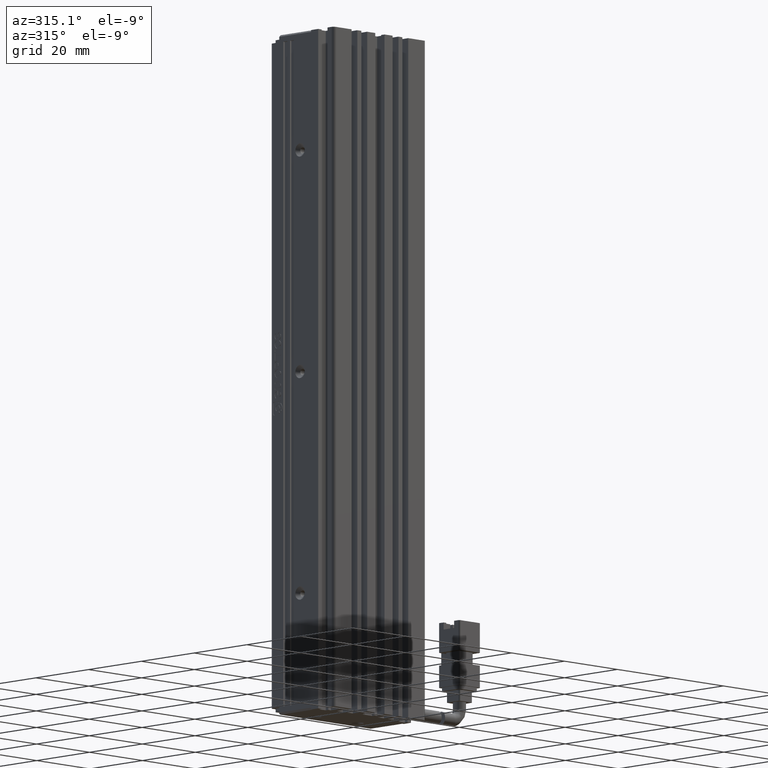
[diagram: clean part render]
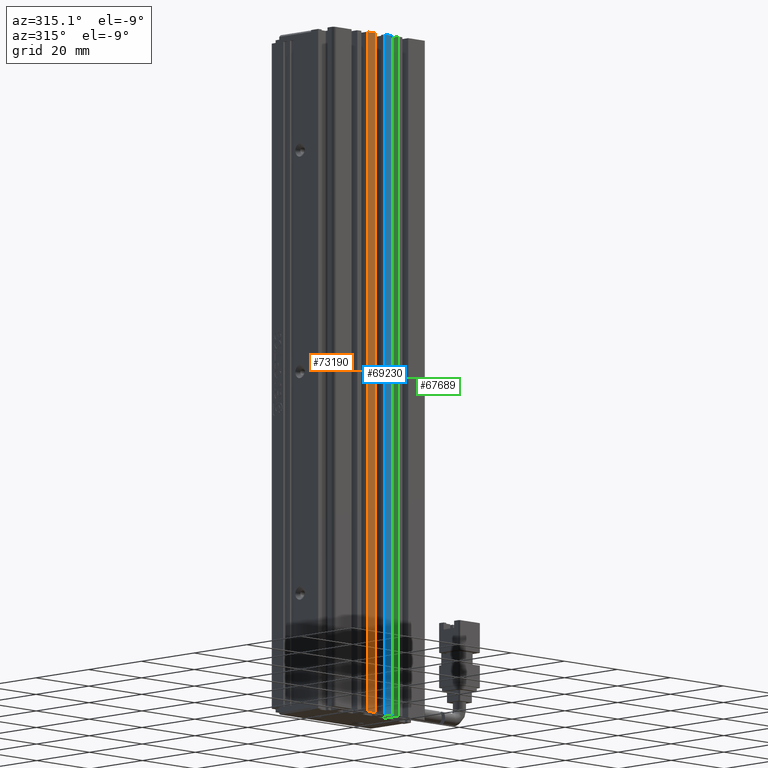
[diagram: same view with three faces highlighted in distinct colors, each labeled with its STEP entity id]
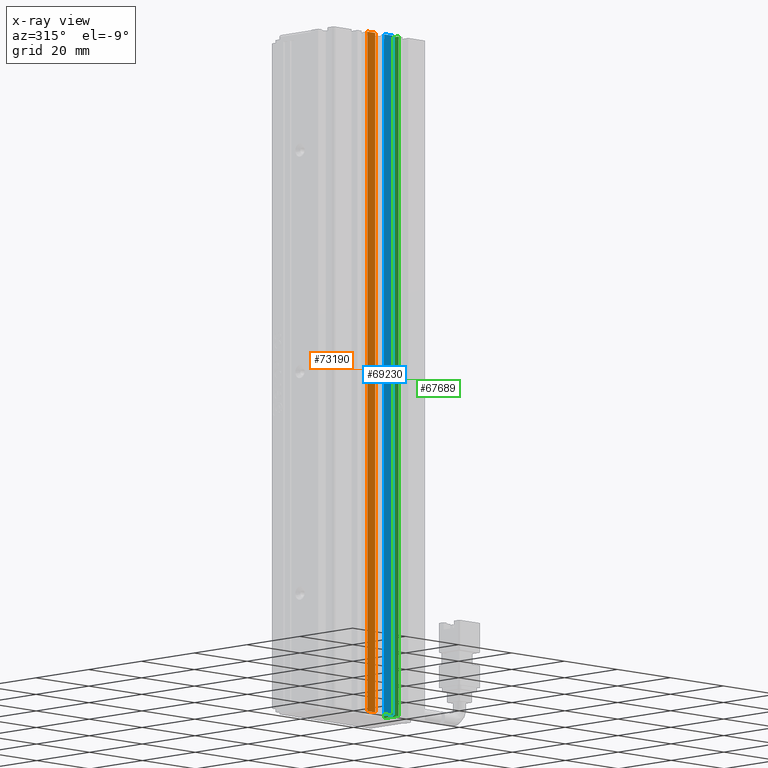
[diagram: x-ray of the same camera — body ghosted, the three highlighted faces saturated]
A machine part, auxiliary view with three faces highlighted in distinct colors.
The next image is the same camera in x-ray (body ghosted, the three faces saturated) — at least one of them is partly hidden behind the body in this view.
Their STEP definitions:

[orange] entity #73190 — the highlighted planar face has unit normal (0, -1, 0).
#4087 = EDGE_CURVE ( 'NONE', #6934, #63923, #22555, .T. ) ;
#5520 = ORIENTED_EDGE ( 'NONE', *, *, #56306, .T. ) ;
#6934 = VERTEX_POINT ( 'NONE', #51385 ) ;
#12261 = FACE_OUTER_BOUND ( 'NONE', #21365, .T. ) ;
#12313 = CARTESIAN_POINT ( 'NONE',  ( 40.92537974683542500, 10.99073232304837000, -23.00000000000000700 ) ) ;
#12584 = DIRECTION ( 'NONE',  ( 0.0000000000000000000, -1.000000000000000000, 0.0000000000000000000 ) ) ;
#15700 = CARTESIAN_POINT ( 'NONE',  ( 40.92537974683542500, 10.99073232304837000, -23.00000000000000700 ) ) ;
#15969 = DIRECTION ( 'NONE',  ( 1.000000000000000000, 0.0000000000000000000, 0.0000000000000000000 ) ) ;
#18214 = LINE ( 'NONE', #47693, #46633 ) ;
#20339 = VECTOR ( 'NONE', #40221, 1000.000000000000000 ) ;
#21365 = EDGE_LOOP ( 'NONE', ( #60254, #5520, #25240, #25096 ) ) ;
#21684 = CARTESIAN_POINT ( 'NONE',  ( 36.12537974683543500, 10.99073232304837000, -23.00000000000000700 ) ) ;
#22555 = LINE ( 'NONE', #15700, #34928 ) ;
#24163 = LINE ( 'NONE', #65175, #20339 ) ;
#25096 = ORIENTED_EDGE ( 'NONE', *, *, #58992, .T. ) ;
#25240 = ORIENTED_EDGE ( 'NONE', *, *, #27084, .T. ) ;
#27084 = EDGE_CURVE ( 'NONE', #46494, #42562, #18214, .T. ) ;
#34928 = VECTOR ( 'NONE', #15969, 1000.000000000000000 ) ;
#35980 = CARTESIAN_POINT ( 'NONE',  ( 39.17537974683542500, 10.99073232304837000, -23.00000000000000700 ) ) ;
#40221 = DIRECTION ( 'NONE',  ( -0.0000000000000000000, 0.0000000000000000000, 1.000000000000000000 ) ) ;
#42515 = CARTESIAN_POINT ( 'NONE',  ( 36.12537974683543500, 10.99073232304837000, -207.0000000000000300 ) ) ;
#42562 = VERTEX_POINT ( 'NONE', #42638 ) ;
#42638 = CARTESIAN_POINT ( 'NONE',  ( 39.17537974683542500, 10.99073232304837000, -207.0000000000000300 ) ) ;
#46349 = AXIS2_PLACEMENT_3D ( 'NONE', #12313, #12584, #54718 ) ;
#46494 = VERTEX_POINT ( 'NONE', #42515 ) ;
#46633 = VECTOR ( 'NONE', #78815, 1000.000000000000000 ) ;
#47424 = VECTOR ( 'NONE', #64129, 1000.000000000000000 ) ;
#47693 = CARTESIAN_POINT ( 'NONE',  ( 40.92537974683542500, 10.99073232304837000, -207.0000000000000300 ) ) ;
#51385 = CARTESIAN_POINT ( 'NONE',  ( 36.12537974683543500, 10.99073232304837000, -23.00000000000000700 ) ) ;
#54718 = DIRECTION ( 'NONE',  ( 0.0000000000000000000, -0.0000000000000000000, -1.000000000000000000 ) ) ;
#56306 = EDGE_CURVE ( 'NONE', #6934, #46494, #56933, .T. ) ;
#56933 = LINE ( 'NONE', #21684, #47424 ) ;
#58992 = EDGE_CURVE ( 'NONE', #42562, #63923, #24163, .T. ) ;
#60254 = ORIENTED_EDGE ( 'NONE', *, *, #4087, .F. ) ;
#63923 = VERTEX_POINT ( 'NONE', #35980 ) ;
#64129 = DIRECTION ( 'NONE',  ( 0.0000000000000000000, -0.0000000000000000000, -1.000000000000000000 ) ) ;
#65175 = CARTESIAN_POINT ( 'NONE',  ( 39.17537974683542500, 10.99073232304837000, -23.00000000000000700 ) ) ;
#73190 = ADVANCED_FACE ( 'NONE', ( #12261 ), #73419, .T. ) ;
#73419 = PLANE ( 'NONE',  #46349 ) ;
#78815 = DIRECTION ( 'NONE',  ( 1.000000000000000000, 0.0000000000000000000, 0.0000000000000000000 ) ) ;

[blue] entity #69230 — the highlighted planar face has unit normal (0, 1, 0).
#2131 = LINE ( 'NONE', #68519, #3021 ) ;
#3021 = VECTOR ( 'NONE', #68001, 1000.000000000000000 ) ;
#3671 = CARTESIAN_POINT ( 'NONE',  ( 42.67537974683542500, 10.99073232304837000, -207.0000000000000300 ) ) ;
#3752 = LINE ( 'NONE', #50970, #14334 ) ;
#8705 = ORIENTED_EDGE ( 'NONE', *, *, #39044, .F. ) ;
#14334 = VECTOR ( 'NONE', #50448, 1000.000000000000000 ) ;
#18271 = VECTOR ( 'NONE', #73522, 1000.000000000000000 ) ;
#24637 = CARTESIAN_POINT ( 'NONE',  ( 42.67537974683542500, 10.99073232304837000, -23.00000000000000700 ) ) ;
#28519 = PLANE ( 'NONE',  #70925 ) ;
#29912 = CARTESIAN_POINT ( 'NONE',  ( 40.92537974683542500, 10.99073232304837000, -23.00000000000000700 ) ) ;
#35357 = EDGE_LOOP ( 'NONE', ( #47292, #8705, #73602, #47535 ) ) ;
#35817 = CARTESIAN_POINT ( 'NONE',  ( 45.72537974683541500, 10.99073232304837000, -23.00000000000000700 ) ) ;
#37168 = CARTESIAN_POINT ( 'NONE',  ( 42.67537974683542500, 10.99073232304837000, -23.00000000000000700 ) ) ;
#39044 = EDGE_CURVE ( 'NONE', #45450, #74076, #63844, .T. ) ;
#39197 = VECTOR ( 'NONE', #59864, 1000.000000000000000 ) ;
#42298 = EDGE_CURVE ( 'NONE', #62341, #45450, #57137, .T. ) ;
#45450 = VERTEX_POINT ( 'NONE', #37168 ) ;
#46774 = CARTESIAN_POINT ( 'NONE',  ( 40.92537974683542500, 10.99073232304837000, -23.00000000000000700 ) ) ;
#47292 = ORIENTED_EDGE ( 'NONE', *, *, #67179, .T. ) ;
#47535 = ORIENTED_EDGE ( 'NONE', *, *, #57252, .T. ) ;
#50448 = DIRECTION ( 'NONE',  ( 1.000000000000000000, 0.0000000000000000000, 0.0000000000000000000 ) ) ;
#50970 = CARTESIAN_POINT ( 'NONE',  ( 40.92537974683542500, 10.99073232304837000, -207.0000000000000300 ) ) ;
#57137 = LINE ( 'NONE', #24637, #18271 ) ;
#57252 = EDGE_CURVE ( 'NONE', #62341, #72633, #3752, .T. ) ;
#59864 = DIRECTION ( 'NONE',  ( 1.000000000000000000, 0.0000000000000000000, 0.0000000000000000000 ) ) ;
#62341 = VERTEX_POINT ( 'NONE', #3671 ) ;
#63844 = LINE ( 'NONE', #29912, #39197 ) ;
#65396 = DIRECTION ( 'NONE',  ( 0.0000000000000000000, -0.0000000000000000000, 1.000000000000000000 ) ) ;
#67179 = EDGE_CURVE ( 'NONE', #72633, #74076, #2131, .T. ) ;
#68001 = DIRECTION ( 'NONE',  ( 0.0000000000000000000, 0.0000000000000000000, 1.000000000000000000 ) ) ;
#68519 = CARTESIAN_POINT ( 'NONE',  ( 45.72537974683541500, 10.99073232304837000, -23.00000000000000700 ) ) ;
#69230 = ADVANCED_FACE ( 'NONE', ( #69911 ), #28519, .F. ) ;
#69911 = FACE_OUTER_BOUND ( 'NONE', #35357, .T. ) ;
#70925 = AXIS2_PLACEMENT_3D ( 'NONE', #46774, #78210, #65396 ) ;
#72633 = VERTEX_POINT ( 'NONE', #73543 ) ;
#73522 = DIRECTION ( 'NONE',  ( 0.0000000000000000000, -0.0000000000000000000, 1.000000000000000000 ) ) ;
#73543 = CARTESIAN_POINT ( 'NONE',  ( 45.72537974683541500, 10.99073232304837000, -207.0000000000000300 ) ) ;
#73602 = ORIENTED_EDGE ( 'NONE', *, *, #42298, .F. ) ;
#74076 = VERTEX_POINT ( 'NONE', #35817 ) ;
#78210 = DIRECTION ( 'NONE',  ( 0.0000000000000000000, 1.000000000000000000, 0.0000000000000000000 ) ) ;

[green] entity #67689 — the highlighted planar face has unit normal (-1, 0, 0).
#385 = DIRECTION ( 'NONE',  ( 0.0000000000000000000, 0.0000000000000000000, 1.000000000000000000 ) ) ;
#506 = AXIS2_PLACEMENT_3D ( 'NONE', #29725, #36165, #33703 ) ;
#5952 = CARTESIAN_POINT ( 'NONE',  ( 47.92537974683541800, 10.99073232304837000, -23.00000000000000700 ) ) ;
#6271 = ORIENTED_EDGE ( 'NONE', *, *, #73855, .T. ) ;
#7643 = DIRECTION ( 'NONE',  ( -0.0000000000000000000, -1.000000000000000000, 0.0000000000000000000 ) ) ;
#9328 = CARTESIAN_POINT ( 'NONE',  ( 47.92537974683541800, 16.49073232304837000, -207.0000000000000300 ) ) ;
#10316 = DIRECTION ( 'NONE',  ( -0.0000000000000000000, -1.000000000000000000, 0.0000000000000000000 ) ) ;
#15125 = LINE ( 'NONE', #47662, #77870 ) ;
#15856 = VECTOR ( 'NONE', #7643, 1000.000000000000000 ) ;
#16257 = VERTEX_POINT ( 'NONE', #57658 ) ;
#16883 = DIRECTION ( 'NONE',  ( -0.0000000000000000000, -0.0000000000000000000, -1.000000000000000000 ) ) ;
#20114 = LINE ( 'NONE', #29485, #48565 ) ;
#29485 = CARTESIAN_POINT ( 'NONE',  ( 47.92537974683541800, 7.083797468354437600, -23.00000000000000700 ) ) ;
#29725 = CARTESIAN_POINT ( 'NONE',  ( 47.92537974683541800, 7.083797468354437600, -23.00000000000000700 ) ) ;
#33618 = EDGE_CURVE ( 'NONE', #39722, #16257, #55306, .T. ) ;
#33703 = DIRECTION ( 'NONE',  ( 0.0000000000000000000, 0.0000000000000000000, 1.000000000000000000 ) ) ;
#34312 = VERTEX_POINT ( 'NONE', #52559 ) ;
#36165 = DIRECTION ( 'NONE',  ( -1.000000000000000000, 0.0000000000000000000, 0.0000000000000000000 ) ) ;
#38821 = CARTESIAN_POINT ( 'NONE',  ( 47.92537974683541800, 10.99073232304837000, -207.0000000000000300 ) ) ;
#39722 = VERTEX_POINT ( 'NONE', #38821 ) ;
#43882 = PLANE ( 'NONE',  #506 ) ;
#44585 = EDGE_LOOP ( 'NONE', ( #60759, #61810, #6271, #51758 ) ) ;
#47662 = CARTESIAN_POINT ( 'NONE',  ( 47.92537974683541800, 16.49073232304836600, -23.00000000000000700 ) ) ;
#48565 = VECTOR ( 'NONE', #10316, 1000.000000000000000 ) ;
#51758 = ORIENTED_EDGE ( 'NONE', *, *, #33618, .T. ) ;
#52559 = CARTESIAN_POINT ( 'NONE',  ( 47.92537974683541800, 16.49073232304837000, -23.00000000000000700 ) ) ;
#54708 = LINE ( 'NONE', #74363, #15856 ) ;
#55306 = LINE ( 'NONE', #5952, #57217 ) ;
#55801 = EDGE_CURVE ( 'NONE', #34312, #16257, #20114, .T. ) ;
#56707 = VERTEX_POINT ( 'NONE', #9328 ) ;
#57217 = VECTOR ( 'NONE', #385, 1000.000000000000000 ) ;
#57658 = CARTESIAN_POINT ( 'NONE',  ( 47.92537974683541800, 10.99073232304837000, -23.00000000000000700 ) ) ;
#60759 = ORIENTED_EDGE ( 'NONE', *, *, #55801, .F. ) ;
#60971 = EDGE_CURVE ( 'NONE', #34312, #56707, #15125, .T. ) ;
#61810 = ORIENTED_EDGE ( 'NONE', *, *, #60971, .T. ) ;
#67689 = ADVANCED_FACE ( 'NONE', ( #73349 ), #43882, .T. ) ;
#73349 = FACE_OUTER_BOUND ( 'NONE', #44585, .T. ) ;
#73855 = EDGE_CURVE ( 'NONE', #56707, #39722, #54708, .T. ) ;
#74363 = CARTESIAN_POINT ( 'NONE',  ( 47.92537974683541800, 7.083797468354437600, -207.0000000000000300 ) ) ;
#77870 = VECTOR ( 'NONE', #16883, 1000.000000000000000 ) ;